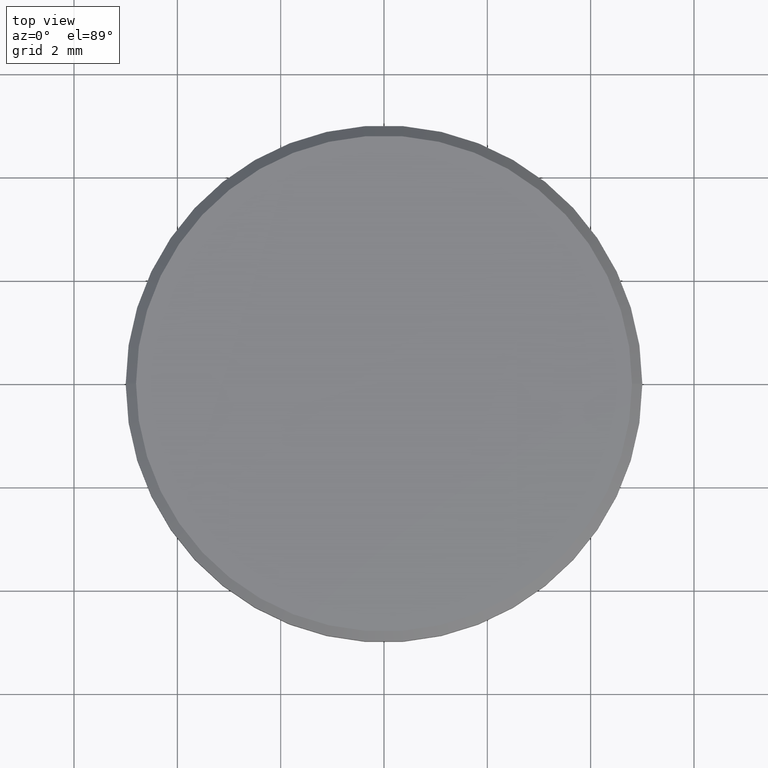
[diagram: clean part render]
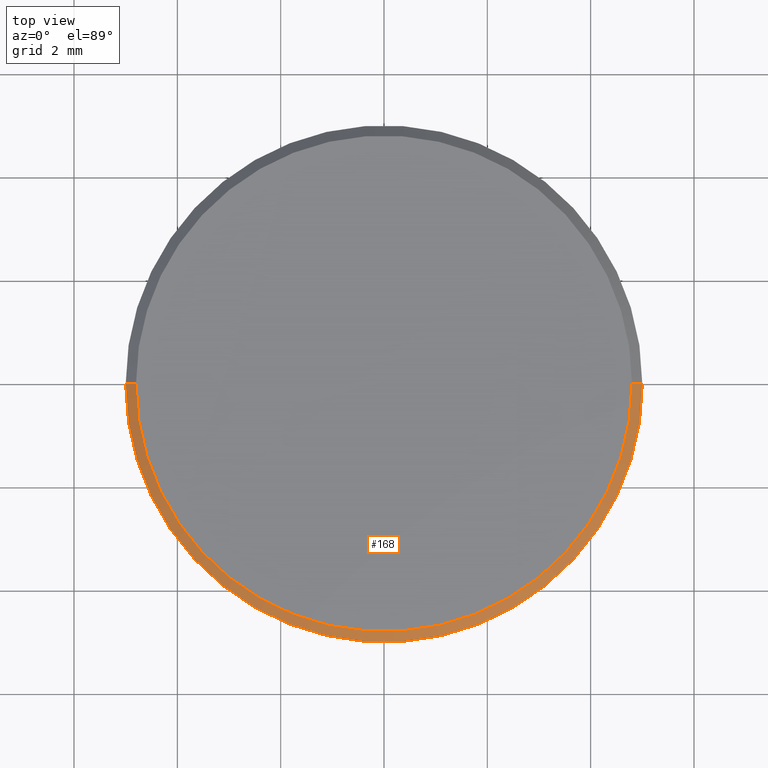
[diagram: same view with one face highlighted and labeled with its STEP entity id]
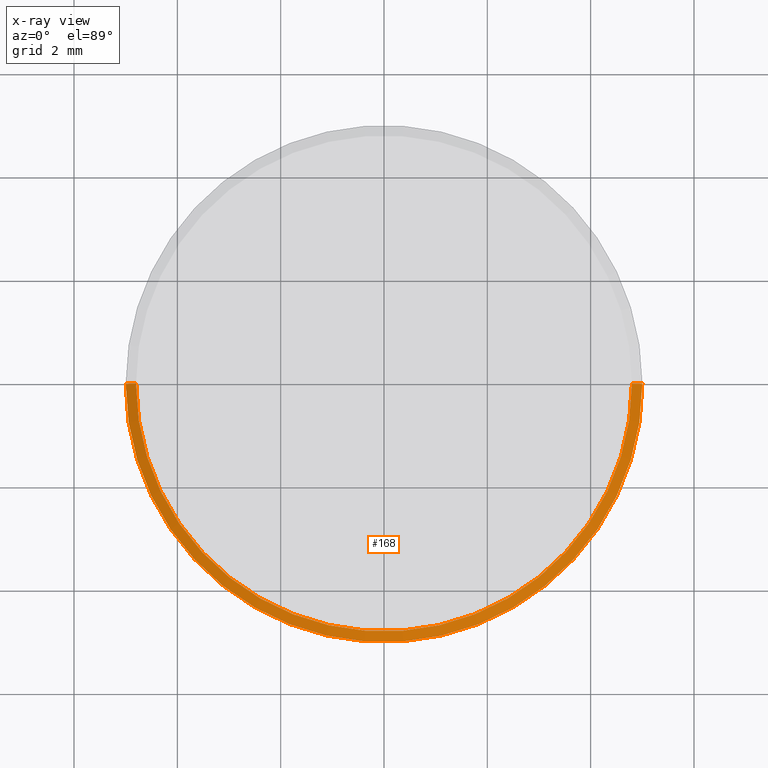
[diagram: x-ray of the same camera — body ghosted, the highlighted face saturated]
A machine part, top view. The second image highlights one B-rep face of the part: STEP entity #168.
The next image is the same camera in x-ray: the body ghosted, the highlighted face saturated — about 0% of this face is hidden behind the body in this view.
In plain terms, the highlighted conical surface has half-angle 45 deg.
Its self-contained STEP definition (entity closure, byte-faithful):
#5 = AXIS2_PLACEMENT_3D ( 'NONE', #37, #19, #239 ) ;
#12 = EDGE_CURVE ( 'NONE', #155, #194, #175, .T. ) ;
#15 = AXIS2_PLACEMENT_3D ( 'NONE', #82, #180, #158 ) ;
#19 = DIRECTION ( 'NONE',  ( 0.000000000000000000, 0.000000000000000000, 1.000000000000000000 ) ) ;
#32 = CARTESIAN_POINT ( 'NONE',  ( 0.000000000000000000, 0.000000000000000000, 1.000000000000000000 ) ) ;
#33 = CARTESIAN_POINT ( 'NONE',  ( 4.800000000000002487, 5.878304635907297169E-16, 1.000000000000000000 ) ) ;
#37 = CARTESIAN_POINT ( 'NONE',  ( 0.000000000000000000, 0.000000000000000000, 1.000000000000000000 ) ) ;
#50 = FACE_OUTER_BOUND ( 'NONE', #206, .T. ) ;
#61 = AXIS2_PLACEMENT_3D ( 'NONE', #32, #236, #199 ) ;
#64 = DIRECTION ( 'NONE',  ( -0.7071067811865460184, 0.000000000000000000, -0.7071067811865489050 ) ) ;
#65 = CARTESIAN_POINT ( 'NONE',  ( -4.800000000000002487, 0.000000000000000000, 1.000000000000000000 ) ) ;
#77 = VECTOR ( 'NONE', #215, 1000.000000000000114 ) ;
#79 = VERTEX_POINT ( 'NONE', #85 ) ;
#82 = CARTESIAN_POINT ( 'NONE',  ( 0.000000000000000000, 0.000000000000000000, 0.8000000000000012657 ) ) ;
#85 = CARTESIAN_POINT ( 'NONE',  ( 5.000000000000000000, 6.123233995736766282E-16, 0.8000000000000012657 ) ) ;
#87 = CONICAL_SURFACE ( 'NONE', #61, 4.800000000000002487, 0.7853981633974461696 ) ;
#89 = CIRCLE ( 'NONE', #15, 5.000000000000000000 ) ;
#110 = VERTEX_POINT ( 'NONE', #141 ) ;
#118 = EDGE_CURVE ( 'NONE', #79, #194, #89, .T. ) ;
#121 = LINE ( 'NONE', #33, #77 ) ;
#141 = CARTESIAN_POINT ( 'NONE',  ( 4.800000000000002487, 6.000769315822031726E-16, 1.000000000000000000 ) ) ;
#145 = EDGE_CURVE ( 'NONE', #110, #79, #121, .T. ) ;
#155 = VERTEX_POINT ( 'NONE', #65 ) ;
#158 = DIRECTION ( 'NONE',  ( 1.000000000000000000, 0.000000000000000000, 0.000000000000000000 ) ) ;
#168 = ADVANCED_FACE ( 'NONE', ( #50 ), #87, .T. ) ;
#170 = ORIENTED_EDGE ( 'NONE', *, *, #118, .F. ) ;
#173 = ORIENTED_EDGE ( 'NONE', *, *, #145, .F. ) ;
#175 = LINE ( 'NONE', #232, #219 ) ;
#177 = ORIENTED_EDGE ( 'NONE', *, *, #12, .T. ) ;
#180 = DIRECTION ( 'NONE',  ( 0.000000000000000000, 0.000000000000000000, -1.000000000000000000 ) ) ;
#194 = VERTEX_POINT ( 'NONE', #198 ) ;
#198 = CARTESIAN_POINT ( 'NONE',  ( -5.000000000000000000, 0.000000000000000000, 0.8000000000000012657 ) ) ;
#199 = DIRECTION ( 'NONE',  ( -1.000000000000000000, 0.000000000000000000, 0.000000000000000000 ) ) ;
#206 = EDGE_LOOP ( 'NONE', ( #173, #207, #177, #170 ) ) ;
#207 = ORIENTED_EDGE ( 'NONE', *, *, #231, .F. ) ;
#215 = DIRECTION ( 'NONE',  ( 0.7071067811865460184, 8.659560562354913137E-17, -0.7071067811865489050 ) ) ;
#217 = CIRCLE ( 'NONE', #5, 4.800000000000002487 ) ;
#219 = VECTOR ( 'NONE', #64, 1000.000000000000114 ) ;
#231 = EDGE_CURVE ( 'NONE', #155, #110, #217, .T. ) ;
#232 = CARTESIAN_POINT ( 'NONE',  ( -4.800000000000002487, 0.000000000000000000, 1.000000000000000000 ) ) ;
#236 = DIRECTION ( 'NONE',  ( 0.000000000000000000, 0.000000000000000000, -1.000000000000000000 ) ) ;
#239 = DIRECTION ( 'NONE',  ( 1.000000000000000000, 0.000000000000000000, 0.000000000000000000 ) ) ;